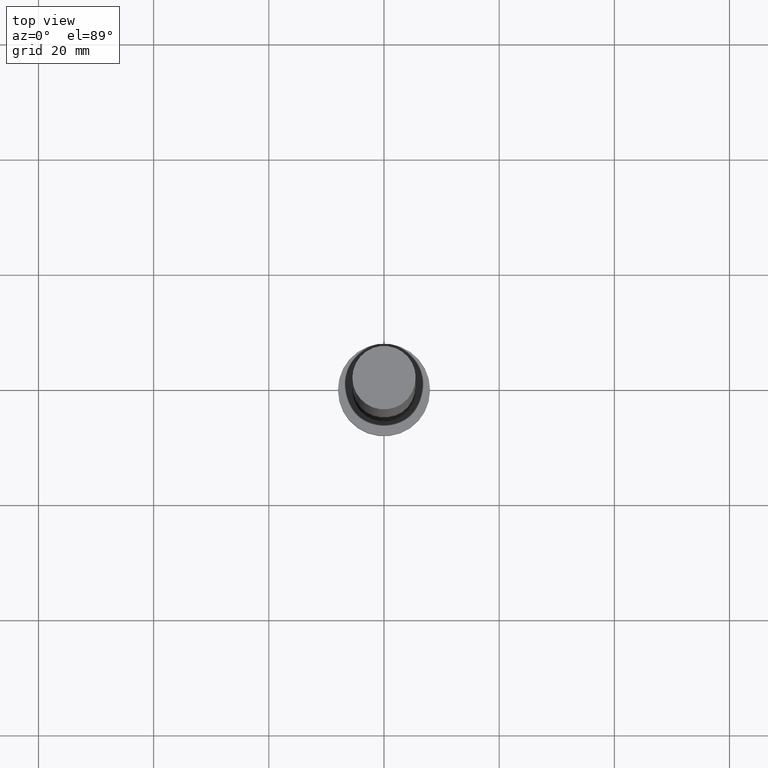
[diagram: clean part render]
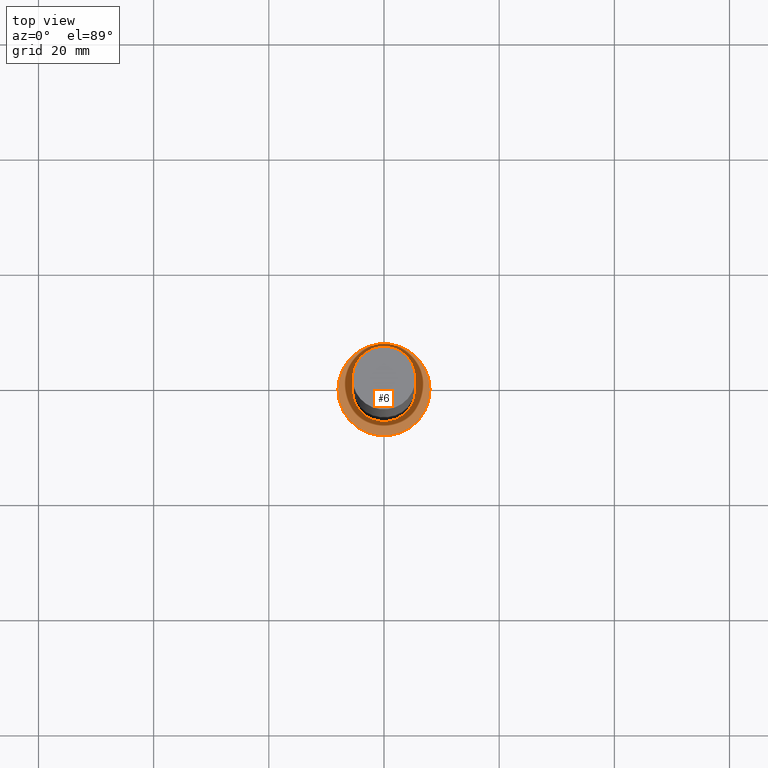
[diagram: same view with one face highlighted and labeled with its STEP entity id]
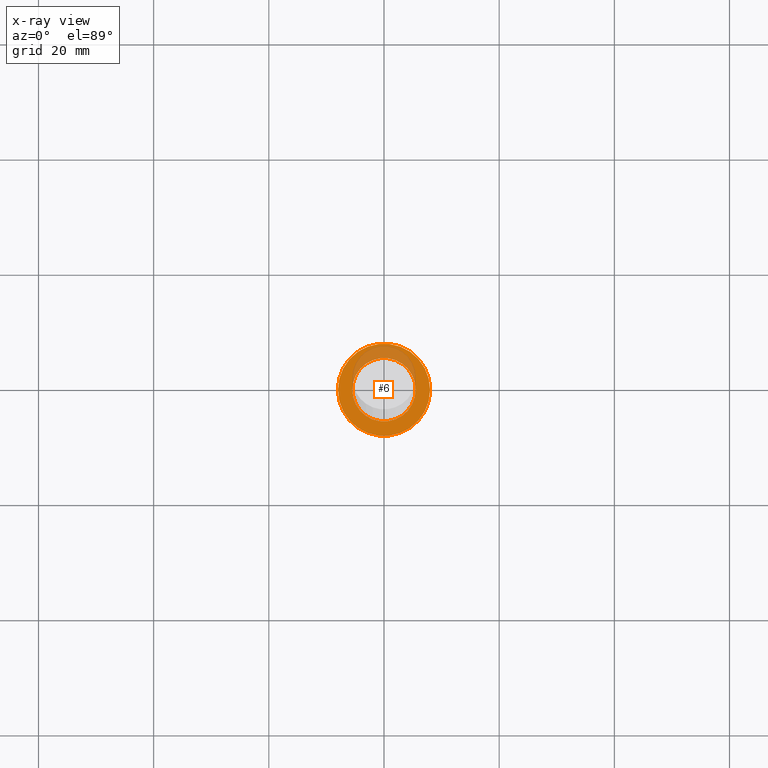
[diagram: x-ray of the same camera — body ghosted, the highlighted face saturated]
A machine part, top view. The second image highlights one B-rep face of the part: STEP entity #6.
The next image is the same camera in x-ray: the body ghosted, the highlighted face saturated — about 22% of this face is hidden behind the body in this view.
In plain terms, the highlighted planar face has unit normal (0, 0, 1).
Its self-contained STEP definition (entity closure, byte-faithful):
#5 = DIRECTION ( 'NONE',  ( 0.000000000000000000, 0.000000000000000000, 1.000000000000000000 ) ) ;
#6 = ADVANCED_FACE ( 'NONE', ( #87, #201 ), #42, .T. ) ;
#11 = ORIENTED_EDGE ( 'NONE', *, *, #224, .T. ) ;
#16 = CARTESIAN_POINT ( 'NONE',  ( 8.000000000000000000, 9.797174393178825657E-16, 5.000000000000000000 ) ) ;
#29 = CARTESIAN_POINT ( 'NONE',  ( 5.500000000000000000, 6.735557395310442023E-16, 5.000000000000000000 ) ) ;
#35 = VERTEX_POINT ( 'NONE', #29 ) ;
#37 = ORIENTED_EDGE ( 'NONE', *, *, #102, .T. ) ;
#42 = PLANE ( 'NONE',  #49 ) ;
#43 = CIRCLE ( 'NONE', #212, 8.000000000000000000 ) ;
#49 = AXIS2_PLACEMENT_3D ( 'NONE', #179, #143, #162 ) ;
#51 = CARTESIAN_POINT ( 'NONE',  ( -5.500000000000000000, 0.000000000000000000, 5.000000000000000000 ) ) ;
#55 = VERTEX_POINT ( 'NONE', #167 ) ;
#60 = EDGE_CURVE ( 'NONE', #35, #216, #79, .T. ) ;
#75 = ORIENTED_EDGE ( 'NONE', *, *, #170, .F. ) ;
#79 = CIRCLE ( 'NONE', #214, 5.500000000000000000 ) ;
#87 = FACE_BOUND ( 'NONE', #215, .T. ) ;
#102 = EDGE_CURVE ( 'NONE', #55, #246, #165, .T. ) ;
#111 = CARTESIAN_POINT ( 'NONE',  ( 0.000000000000000000, 0.000000000000000000, 5.000000000000000000 ) ) ;
#122 = CARTESIAN_POINT ( 'NONE',  ( 0.000000000000000000, 0.000000000000000000, 5.000000000000000000 ) ) ;
#123 = EDGE_LOOP ( 'NONE', ( #37, #11 ) ) ;
#133 = CARTESIAN_POINT ( 'NONE',  ( 0.000000000000000000, 0.000000000000000000, 5.000000000000000000 ) ) ;
#140 = CARTESIAN_POINT ( 'NONE',  ( 0.000000000000000000, 0.000000000000000000, 5.000000000000000000 ) ) ;
#142 = AXIS2_PLACEMENT_3D ( 'NONE', #122, #252, #198 ) ;
#143 = DIRECTION ( 'NONE',  ( 0.000000000000000000, 0.000000000000000000, 1.000000000000000000 ) ) ;
#153 = DIRECTION ( 'NONE',  ( 0.000000000000000000, 0.000000000000000000, 1.000000000000000000 ) ) ;
#156 = DIRECTION ( 'NONE',  ( 0.000000000000000000, 0.000000000000000000, 1.000000000000000000 ) ) ;
#162 = DIRECTION ( 'NONE',  ( 1.000000000000000000, 0.000000000000000000, -0.000000000000000000 ) ) ;
#165 = CIRCLE ( 'NONE', #220, 8.000000000000000000 ) ;
#167 = CARTESIAN_POINT ( 'NONE',  ( -8.000000000000000000, 0.000000000000000000, 5.000000000000000000 ) ) ;
#170 = EDGE_CURVE ( 'NONE', #216, #35, #210, .T. ) ;
#172 = DIRECTION ( 'NONE',  ( 1.000000000000000000, 0.000000000000000000, 0.000000000000000000 ) ) ;
#177 = ORIENTED_EDGE ( 'NONE', *, *, #60, .F. ) ;
#179 = CARTESIAN_POINT ( 'NONE',  ( 0.000000000000000000, 0.000000000000000000, 5.000000000000000000 ) ) ;
#198 = DIRECTION ( 'NONE',  ( 1.000000000000000000, 0.000000000000000000, 0.000000000000000000 ) ) ;
#201 = FACE_OUTER_BOUND ( 'NONE', #123, .T. ) ;
#210 = CIRCLE ( 'NONE', #142, 5.500000000000000000 ) ;
#212 = AXIS2_PLACEMENT_3D ( 'NONE', #133, #153, #172 ) ;
#214 = AXIS2_PLACEMENT_3D ( 'NONE', #111, #5, #241 ) ;
#215 = EDGE_LOOP ( 'NONE', ( #75, #177 ) ) ;
#216 = VERTEX_POINT ( 'NONE', #51 ) ;
#220 = AXIS2_PLACEMENT_3D ( 'NONE', #140, #156, #228 ) ;
#224 = EDGE_CURVE ( 'NONE', #246, #55, #43, .T. ) ;
#228 = DIRECTION ( 'NONE',  ( 1.000000000000000000, 0.000000000000000000, 0.000000000000000000 ) ) ;
#241 = DIRECTION ( 'NONE',  ( 1.000000000000000000, 0.000000000000000000, 0.000000000000000000 ) ) ;
#246 = VERTEX_POINT ( 'NONE', #16 ) ;
#252 = DIRECTION ( 'NONE',  ( 0.000000000000000000, 0.000000000000000000, 1.000000000000000000 ) ) ;